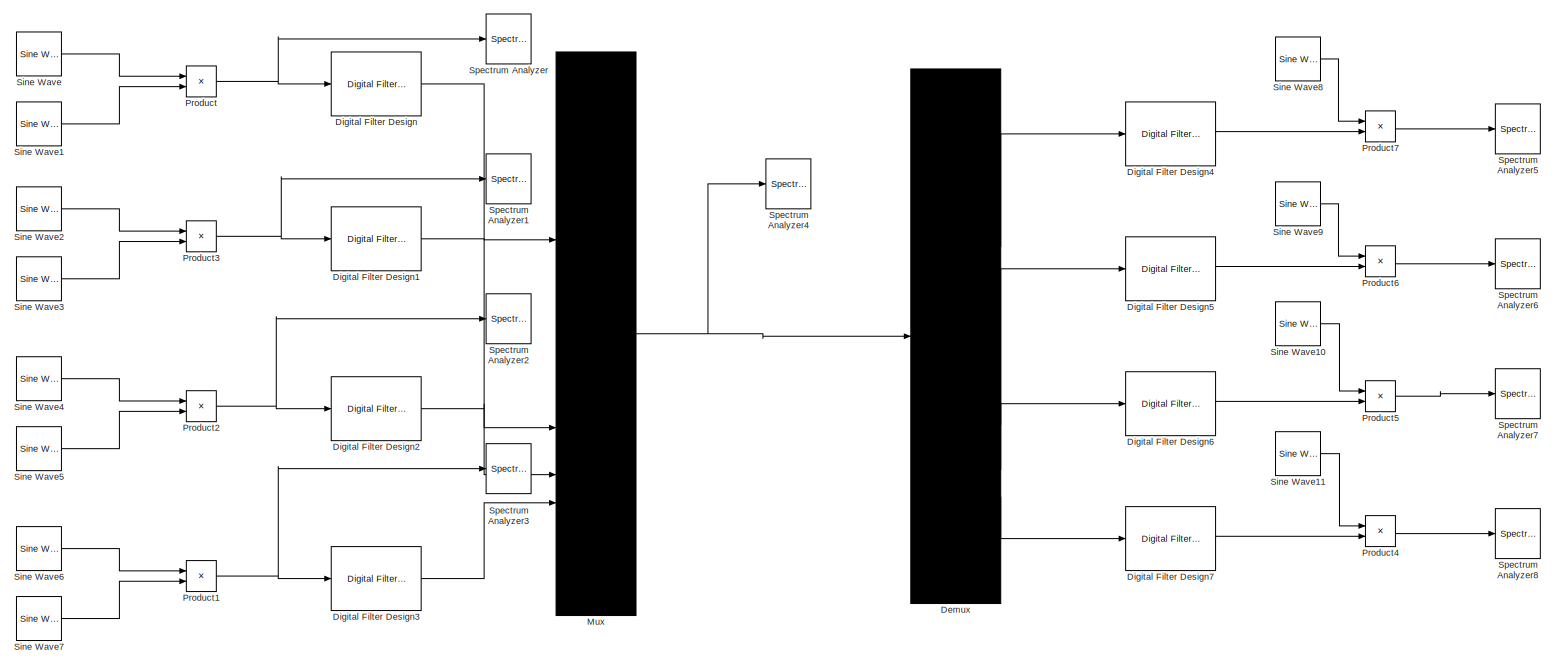
[diagram: root canvas - part 1/1, most of the canvas]
MODEL slx_b9757124624b
KIND model
CONFIG AbsTol = auto
CONFIG EnableMultiTasking = off
CONFIG FixedStep = auto
CONFIG MaxStep = auto
CONFIG MinStep = auto
CONFIG RelTol = 1e-3
CONFIG SampleTimeConstraint = Unconstrained
CONFIG SolverName = VariableStepAuto
CONFIG StartTime = 0.0
CONFIG StopTime = 10.0
BLOCK [Demux] Demux
BLOCK [Reference] Digital Filter Design  REF=dspfdesign/Digital
Filter Design
  SourceBlock = dspfdesign/Digital\nFilter Design
  SourceType = Digital Filter Design
  UserDataPersistent = on
BLOCK [Reference] Digital Filter Design1  REF=dspfdesign/Digital
Filter Design
  SourceBlock = dspfdesign/Digital\nFilter Design
  SourceType = Digital Filter Design
  UserDataPersistent = on
BLOCK [Reference] Digital Filter Design2  REF=dspfdesign/Digital
Filter Design
  SourceBlock = dspfdesign/Digital\nFilter Design
  SourceType = Digital Filter Design
  UserDataPersistent = on
BLOCK [Reference] Digital Filter Design3  REF=dspfdesign/Digital
Filter Design
  SourceBlock = dspfdesign/Digital\nFilter Design
  SourceType = Digital Filter Design
  UserDataPersistent = on
BLOCK [Reference] Digital Filter Design4  REF=dspfdesign/Digital
Filter Design
  SourceBlock = dspfdesign/Digital\nFilter Design
  SourceType = Digital Filter Design
  UserDataPersistent = on
BLOCK [Reference] Digital Filter Design5  REF=dspfdesign/Digital
Filter Design
  SourceBlock = dspfdesign/Digital\nFilter Design
  SourceType = Digital Filter Design
  UserDataPersistent = on
BLOCK [Reference] Digital Filter Design6  REF=dspfdesign/Digital
Filter Design
  SourceBlock = dspfdesign/Digital\nFilter Design
  SourceType = Digital Filter Design
  UserDataPersistent = on
BLOCK [Reference] Digital Filter Design7  REF=dspfdesign/Digital
Filter Design
  SourceBlock = dspfdesign/Digital\nFilter Design
  SourceType = Digital Filter Design
  UserDataPersistent = on
BLOCK [Mux] Mux
  DisplayOption = bar
BLOCK [Product] Product
BLOCK [Product] Product1
BLOCK [Product] Product2
BLOCK [Product] Product3
BLOCK [Product] Product4
BLOCK [Product] Product5
BLOCK [Product] Product6
BLOCK [Product] Product7
BLOCK [Reference] Sine Wave  REF=dspsrcs4/Sine Wave
  SourceBlock = dspsrcs4/Sine Wave
  SourceType = Sine Wave
BLOCK [Reference] Sine Wave1  REF=dspsrcs4/Sine Wave
  SourceBlock = dspsrcs4/Sine Wave
  SourceType = Sine Wave
BLOCK [Reference] Sine Wave10  REF=dspsrcs4/Sine Wave
  SourceBlock = dspsrcs4/Sine Wave
  SourceType = Sine Wave
BLOCK [Reference] Sine Wave11  REF=dspsrcs4/Sine Wave
  SourceBlock = dspsrcs4/Sine Wave
  SourceType = Sine Wave
BLOCK [Reference] Sine Wave2  REF=dspsrcs4/Sine Wave
  SourceBlock = dspsrcs4/Sine Wave
  SourceType = Sine Wave
BLOCK [Reference] Sine Wave3  REF=dspsrcs4/Sine Wave
  SourceBlock = dspsrcs4/Sine Wave
  SourceType = Sine Wave
BLOCK [Reference] Sine Wave4  REF=dspsrcs4/Sine Wave
  SourceBlock = dspsrcs4/Sine Wave
  SourceType = Sine Wave
BLOCK [Reference] Sine Wave5  REF=dspsrcs4/Sine Wave
  SourceBlock = dspsrcs4/Sine Wave
  SourceType = Sine Wave
BLOCK [Reference] Sine Wave6  REF=dspsrcs4/Sine Wave
  SourceBlock = dspsrcs4/Sine Wave
  SourceType = Sine Wave
BLOCK [Reference] Sine Wave7  REF=dspsrcs4/Sine Wave
  SourceBlock = dspsrcs4/Sine Wave
  SourceType = Sine Wave
BLOCK [Reference] Sine Wave8  REF=dspsrcs4/Sine Wave
  SourceBlock = dspsrcs4/Sine Wave
  SourceType = Sine Wave
BLOCK [Reference] Sine Wave9  REF=dspsrcs4/Sine Wave
  SourceBlock = dspsrcs4/Sine Wave
  SourceType = Sine Wave
BLOCK [SpectrumAnalyzer] Spectrum Analyzer
  GraphicalSettings = {"GraphicalSettings":{"Style":{"BackgroundColor":[0.12941176470588237,0.12941176470588237,0.12941176470588237],"AxesColor":[0.07058823529411765,0.07058823529411765,0.07058823529411765],"LabelsColor":[0.8509803921568627,0.8509803921568627,0.8509803921568627],"PreserveColors":false,"Visible":[true],"LineStyle":["-"],"LineWidth":[1.5],"BarWidth":[0.9],"LineColor":[[1,0.9098039215686274,0.392156862745...<+999ch>  <repeated x9 — deduplicated; at blocks: Spectrum Analyzer, Spectrum Analyzer1, Spectrum Analyzer2, Spectrum Analyzer3, Spectrum Analyzer4, Spectrum Analyzer5, Spectrum Analyzer6, Spectrum Analyzer7, Spectrum Analyzer8>
  ScopeFrameLocation = window
  Visible = on
  WasSavedAsWebScope = on
  WindowInvariantSamplesPerUpdate = on
  WindowPosition = [1520.000000,830.000000,800.000000,500.000000,]
  YLimits = [-55.01079838,25.9672874]
BLOCK [SpectrumAnalyzer] Spectrum Analyzer1
  ScopeFrameLocation = window
  Visible = on
  WasSavedAsWebScope = on
  WindowInvariantSamplesPerUpdate = on
  WindowPosition = [853.400024,153.000000,342.000000,500.000000,]
  YLimits = [-42.63503311,23.41915527]
BLOCK [SpectrumAnalyzer] Spectrum Analyzer2
  ScopeFrameLocation = window
  Visible = on
  WasSavedAsWebScope = on
  WindowInvariantSamplesPerUpdate = on
  WindowPosition = [357.399994,641.599998,302.000000,2.400002,]
  YLimits = [-42.63503311,23.41915527]
BLOCK [SpectrumAnalyzer] Spectrum Analyzer3
  ScopeFrameLocation = window
  Visible = on
  WasSavedAsWebScope = on
  WindowInvariantSamplesPerUpdate = on
  WindowPosition = [20.400000,145.000000,342.000000,500.000000,]
  YLimits = [-55.01079838,25.9672874]
BLOCK [SpectrumAnalyzer] Spectrum Analyzer4
  ScopeFrameLocation = window
  Visible = on
  WasSavedAsWebScope = on
  WindowInvariantSamplesPerUpdate = on
  WindowPosition = [1520.000000,830.000000,800.000000,500.000000,]
  YLimits = [-121.17134569,-55.78607626]
BLOCK [SpectrumAnalyzer] Spectrum Analyzer5
  ScopeFrameLocation = window
  Visible = on
  WasSavedAsWebScope = on
  WindowInvariantSamplesPerUpdate = on
  WindowPosition = [1520.000000,830.000000,800.000000,500.000000,]
  YLimits = [-134.83206371,-43.38875602]
BLOCK [SpectrumAnalyzer] Spectrum Analyzer6
  ScopeFrameLocation = window
  Visible = on
  WasSavedAsWebScope = on
  WindowInvariantSamplesPerUpdate = on
  WindowPosition = [853.400024,153.000000,342.000000,500.000000,]
  YLimits = [-147.46645226,-57.06147369]
BLOCK [SpectrumAnalyzer] Spectrum Analyzer7
  ScopeFrameLocation = window
  Visible = on
  WasSavedAsWebScope = on
  WindowInvariantSamplesPerUpdate = on
  WindowPosition = [357.399994,641.599998,302.000000,2.400002,]
  YLimits = [-143.83426287,-66.10232782]
BLOCK [SpectrumAnalyzer] Spectrum Analyzer8
  ScopeFrameLocation = window
  Visible = on
  WasSavedAsWebScope = on
  WindowInvariantSamplesPerUpdate = on
  WindowPosition = [20.000000,145.000000,742.000000,500.000000,]
  YLimits = [-143.99125552,-73.69752245]
LINE Demux:1 -> Digital Filter Design4:1
LINE Demux:2 -> Digital Filter Design5:1
LINE Demux:3 -> Digital Filter Design6:1
LINE Demux:4 -> Digital Filter Design7:1
LINE Digital Filter Design1:1 -> Mux:2
LINE Digital Filter Design2:1 -> Mux:3
LINE Digital Filter Design3:1 -> Mux:4
LINE Digital Filter Design4:1 -> Product7:2
LINE Digital Filter Design5:1 -> Product6:2
LINE Digital Filter Design6:1 -> Product5:2
LINE Digital Filter Design7:1 -> Product4:2
LINE Digital Filter Design:1 -> Mux:1
NET Mux:1 -> Demux:1, Spectrum Analyzer4:1
NET Product1:1 -> Digital Filter Design3:1, Spectrum Analyzer3:1
NET Product2:1 -> Digital Filter Design2:1, Spectrum Analyzer2:1
NET Product3:1 -> Digital Filter Design1:1, Spectrum Analyzer1:1
LINE Product4:1 -> Spectrum Analyzer8:1
LINE Product5:1 -> Spectrum Analyzer7:1
LINE Product6:1 -> Spectrum Analyzer6:1
LINE Product7:1 -> Spectrum Analyzer5:1
NET Product:1 -> Digital Filter Design:1, Spectrum Analyzer:1
LINE Sine Wave10:1 -> Product5:1
LINE Sine Wave11:1 -> Product4:1
LINE Sine Wave1:1 -> Product:2
LINE Sine Wave2:1 -> Product3:1
LINE Sine Wave3:1 -> Product3:2
LINE Sine Wave4:1 -> Product2:1
LINE Sine Wave5:1 -> Product2:2
LINE Sine Wave6:1 -> Product1:1
LINE Sine Wave7:1 -> Product1:2
LINE Sine Wave8:1 -> Product7:1
LINE Sine Wave9:1 -> Product6:1
LINE Sine Wave:1 -> Product:1
note: NET lines group one-source signal fan-out (src -> all destinations, sorted); 1:1 wires keep LINE
